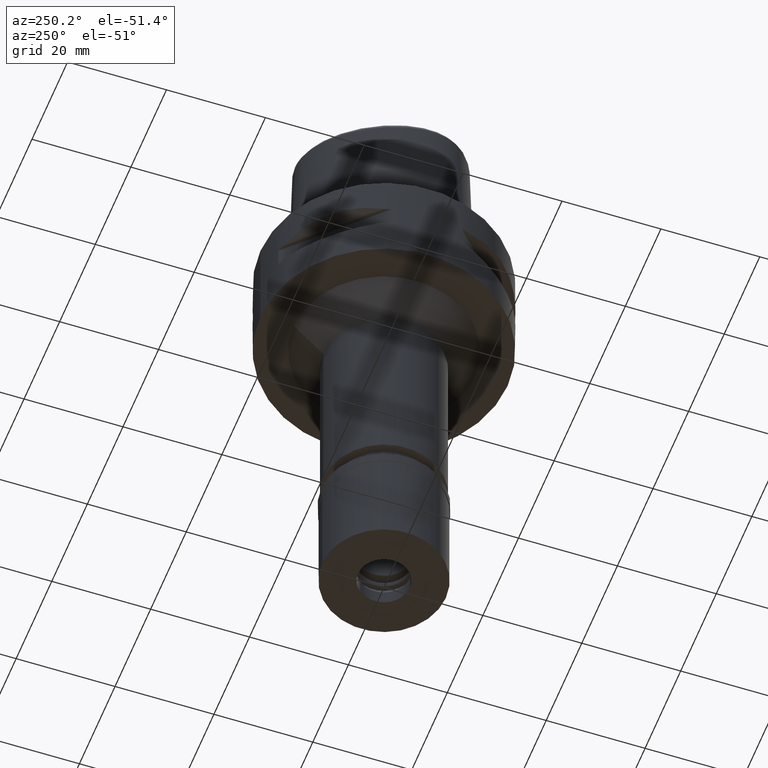
[diagram: clean part render]
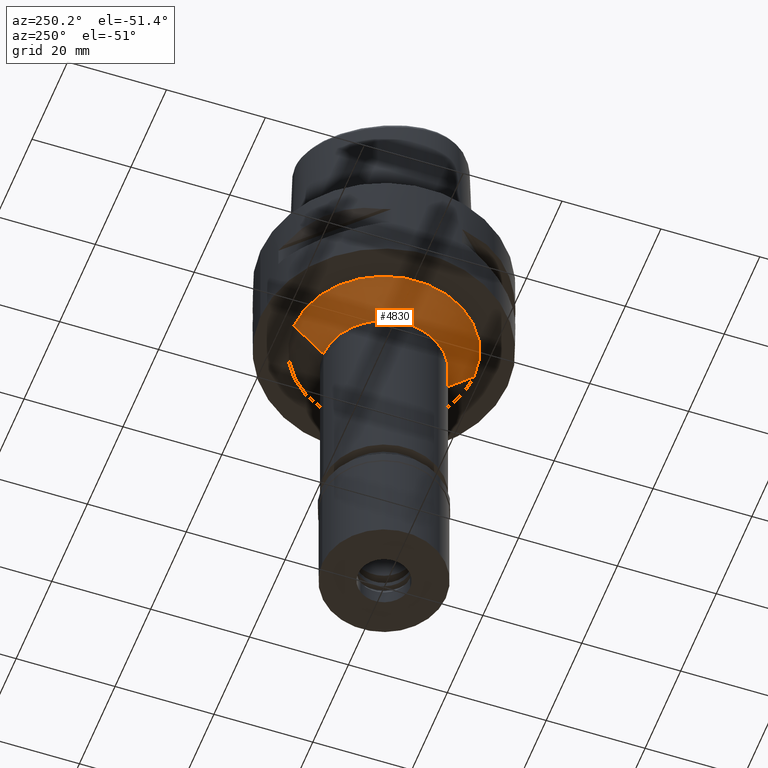
[diagram: same view with one face highlighted and labeled with its STEP entity id]
A machine part, auxiliary view. The second image highlights one B-rep face of the part: STEP entity #4830.
In plain terms, the highlighted conical surface has half-angle 45 deg.
Its self-contained STEP definition (entity closure, byte-faithful):
#85 = VERTEX_POINT ( 'NONE', #1284 ) ;
#149 = CONICAL_SURFACE ( 'NONE', #1036, 15.25000000000000000, 0.7853981633972997312 ) ;
#377 = CIRCLE ( 'NONE', #1677, 12.25000000000000000 ) ;
#524 = FACE_OUTER_BOUND ( 'NONE', #2996, .T. ) ;
#546 = CARTESIAN_POINT ( 'NONE',  ( 0.0000000000000000000, -18.25000000000000000, -20.00000000000000000 ) ) ;
#569 = VECTOR ( 'NONE', #2794, 1000.000000000000114 ) ;
#868 = EDGE_CURVE ( 'NONE', #2360, #4504, #3234, .T. ) ;
#907 = CARTESIAN_POINT ( 'NONE',  ( 0.0000000000000000000, 0.0000000000000000000, -20.00000000000000000 ) ) ;
#947 = DIRECTION ( 'NONE',  ( 0.0000000000000000000, -1.000000000000000000, 0.0000000000000000000 ) ) ;
#1036 = AXIS2_PLACEMENT_3D ( 'NONE', #4272, #4321, #3539 ) ;
#1284 = CARTESIAN_POINT ( 'NONE',  ( 0.0000000000000000000, 12.25000000000000000, -26.00000000000000000 ) ) ;
#1327 = CARTESIAN_POINT ( 'NONE',  ( 0.0000000000000000000, 18.25000000000000000, -20.00000000000000000 ) ) ;
#1525 = CARTESIAN_POINT ( 'NONE',  ( 0.0000000000000000000, 0.0000000000000000000, -26.00000000000000000 ) ) ;
#1677 = AXIS2_PLACEMENT_3D ( 'NONE', #1525, #4207, #3062 ) ;
#1735 = EDGE_CURVE ( 'NONE', #4870, #85, #3568, .T. ) ;
#1901 = CIRCLE ( 'NONE', #3780, 18.25000000000000000 ) ;
#2066 = DIRECTION ( 'NONE',  ( 0.0000000000000000000, 0.7071067811865474617, -0.7071067811865474617 ) ) ;
#2360 = VERTEX_POINT ( 'NONE', #2906 ) ;
#2532 = ORIENTED_EDGE ( 'NONE', *, *, #3661, .F. ) ;
#2576 = CARTESIAN_POINT ( 'NONE',  ( 0.0000000000000000000, -12.25000000000000000, -26.00000000000000000 ) ) ;
#2794 = DIRECTION ( 'NONE',  ( 0.0000000000000000000, -0.7071067811865474617, -0.7071067811865474617 ) ) ;
#2906 = CARTESIAN_POINT ( 'NONE',  ( 0.0000000000000000000, -18.25000000000000000, -20.00000000000000000 ) ) ;
#2996 = EDGE_LOOP ( 'NONE', ( #2532, #4857, #3916, #3434 ) ) ;
#3062 = DIRECTION ( 'NONE',  ( 0.0000000000000000000, -1.000000000000000000, 0.0000000000000000000 ) ) ;
#3234 = LINE ( 'NONE', #546, #4206 ) ;
#3390 = EDGE_CURVE ( 'NONE', #2360, #4870, #1901, .T. ) ;
#3434 = ORIENTED_EDGE ( 'NONE', *, *, #1735, .T. ) ;
#3539 = DIRECTION ( 'NONE',  ( 0.0000000000000000000, 1.000000000000000000, 0.0000000000000000000 ) ) ;
#3568 = LINE ( 'NONE', #1327, #569 ) ;
#3583 = DIRECTION ( 'NONE',  ( 0.0000000000000000000, 0.0000000000000000000, -1.000000000000000000 ) ) ;
#3661 = EDGE_CURVE ( 'NONE', #4504, #85, #377, .T. ) ;
#3780 = AXIS2_PLACEMENT_3D ( 'NONE', #907, #3583, #947 ) ;
#3916 = ORIENTED_EDGE ( 'NONE', *, *, #3390, .T. ) ;
#4206 = VECTOR ( 'NONE', #2066, 1000.000000000000114 ) ;
#4207 = DIRECTION ( 'NONE',  ( 0.0000000000000000000, 0.0000000000000000000, -1.000000000000000000 ) ) ;
#4227 = CARTESIAN_POINT ( 'NONE',  ( 0.0000000000000000000, 18.25000000000000000, -20.00000000000000000 ) ) ;
#4272 = CARTESIAN_POINT ( 'NONE',  ( 0.0000000000000000000, 0.0000000000000000000, -23.00000000000000000 ) ) ;
#4321 = DIRECTION ( 'NONE',  ( 0.0000000000000000000, 0.0000000000000000000, 1.000000000000000000 ) ) ;
#4504 = VERTEX_POINT ( 'NONE', #2576 ) ;
#4830 = ADVANCED_FACE ( 'NONE', ( #524 ), #149, .T. ) ;
#4857 = ORIENTED_EDGE ( 'NONE', *, *, #868, .F. ) ;
#4870 = VERTEX_POINT ( 'NONE', #4227 ) ;